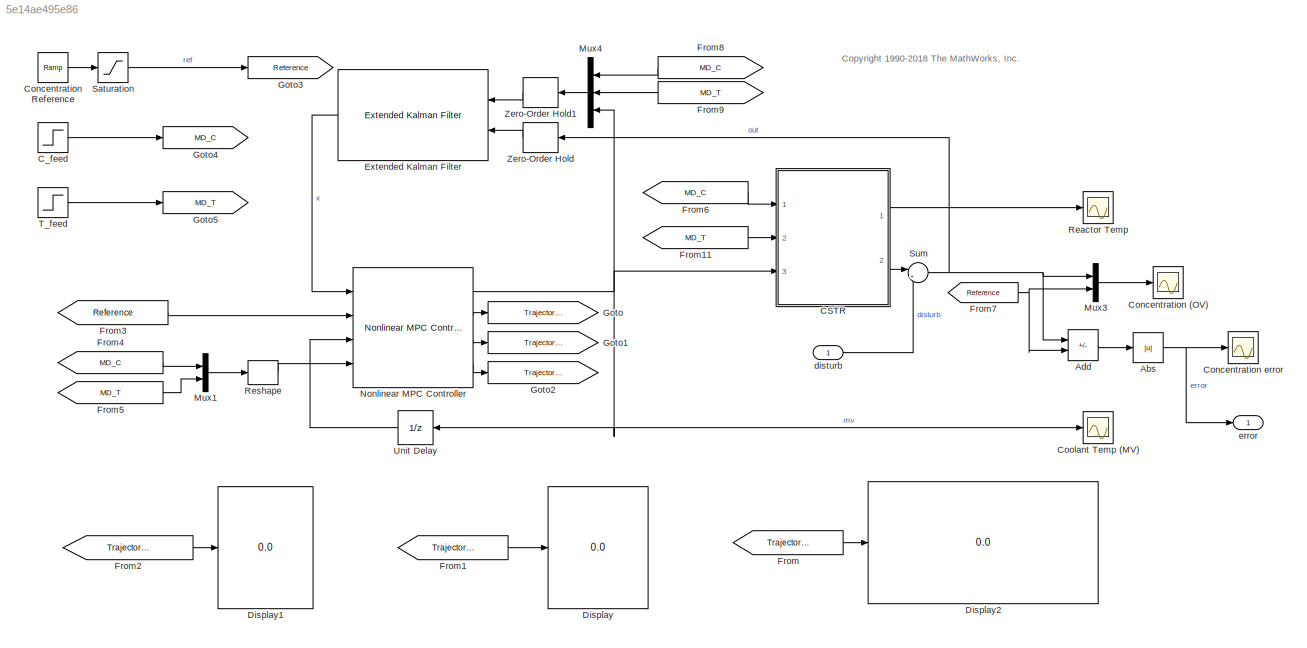
MODEL slx_5e14ae495e86
KIND model
CONFIG AbsTol = auto
CONFIG EnableMultiTasking = off
CONFIG FixedStep = Ts
CONFIG MaxStep = auto
CONFIG MinStep = auto
CONFIG RelTol = 1e-3
CONFIG SampleTimeConstraint = Unconstrained
CONFIG SolverName = FixedStepAuto
CONFIG StartTime = 0.0
CONFIG StopTime = tspan(end)
BLOCK [Abs] Abs
  SaturateOnIntegerOverflow = off
BLOCK [Sum] Add
  IconShape = rectangular
  Inputs = -+
  Ports = [2, 1]
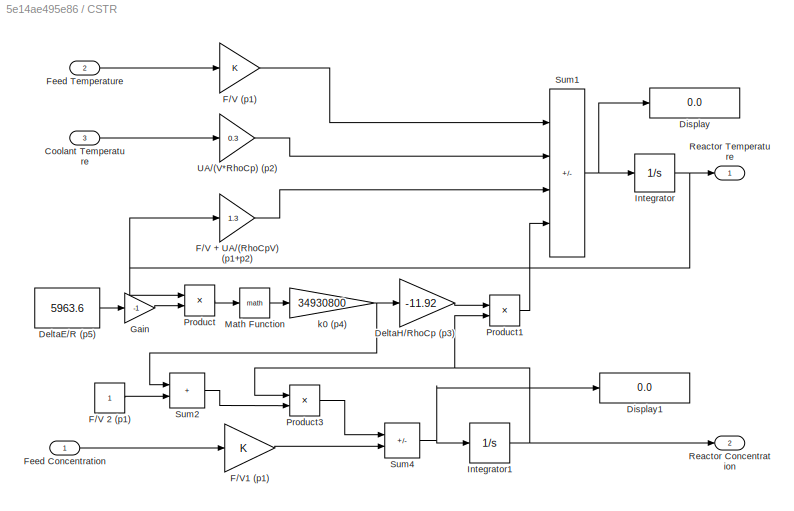
BLOCK [SubSystem] CSTR
  Ports = [3, 2]
  RequestExecContextInheritance = off
BLOCK [Inport] CSTR/Coolant Temperature
  Port = 3
BLOCK [Constant] CSTR/DeltaE//R (p5)
  Value = 5963.6
BLOCK [Gain] CSTR/DeltaH//RhoCp (p3)
  Gain = -11.92
  OutDataTypeStr = Inherit: Same as input
  ParamDataTypeStr = Inherit: Same as input
  SaturateOnIntegerOverflow = on
BLOCK [Display] CSTR/Display
  Decimation = 1
  Ports = [1]
BLOCK [Display] CSTR/Display1
  Decimation = 1
  Ports = [1]
BLOCK [Gain] CSTR/F//V (p1)
  OutDataTypeStr = Inherit: Same as input
  ParamDataTypeStr = Inherit: Same as input
  SaturateOnIntegerOverflow = on
BLOCK [Gain] CSTR/F//V + UA//(RhoCpV) (p1+p2)
  Gain = 1.3
  OutDataTypeStr = Inherit: Same as input
  ParamDataTypeStr = Inherit: Same as input
  SaturateOnIntegerOverflow = on
BLOCK [Constant] CSTR/F//V 2 (p1)
BLOCK [Gain] CSTR/F//V1 (p1)
  OutDataTypeStr = Inherit: Same as input
  ParamDataTypeStr = Inherit: Same as input
  SaturateOnIntegerOverflow = on
BLOCK [Inport] CSTR/Feed Concentration
BLOCK [Inport] CSTR/Feed Temperature
  Port = 2
BLOCK [Gain] CSTR/Gain
  Gain = -1
BLOCK [Integrator] CSTR/Integrator
  InitialCondition = x0(1)
  LimitOutput = on
  LowerSaturationLimit = 0
  Ports = [1, 1]
BLOCK [Integrator] CSTR/Integrator1
  InitialCondition = x0(2)
  LimitOutput = on
  LowerSaturationLimit = 0
  Ports = [1, 1]
BLOCK [Math] CSTR/Math Function
  Ports = [1, 1]
  SignedPower = on
BLOCK [Product] CSTR/Product
  InputSameDT = on
  Inputs = /*
  OutDataTypeStr = Inherit: Same as first input
  Ports = [2, 1]
  RndMeth = Zero
  SaturateOnIntegerOverflow = on
BLOCK [Product] CSTR/Product1
  InputSameDT = on
  OutDataTypeStr = Inherit: Same as first input
  Ports = [2, 1]
  RndMeth = Zero
  SaturateOnIntegerOverflow = on
BLOCK [Product] CSTR/Product3
  InputSameDT = on
  OutDataTypeStr = Inherit: Same as first input
  Ports = [2, 1]
  RndMeth = Zero
  SaturateOnIntegerOverflow = on
BLOCK [Outport] CSTR/Reactor Concentration
  Port = 2
  VectorParamsAs1DForOutWhenUnconnected = off
BLOCK [Outport] CSTR/Reactor Temperature
  VectorParamsAs1DForOutWhenUnconnected = off
BLOCK [Sum] CSTR/Sum1
  IconShape = rectangular
  InputSameDT = on
  Inputs = ++--
  OutDataTypeStr = Inherit: Same as first input
  Ports = [4, 1]
  SaturateOnIntegerOverflow = on
BLOCK [Sum] CSTR/Sum2
  IconShape = rectangular
  InputSameDT = on
  OutDataTypeStr = Inherit: Same as first input
  Ports = [2, 1]
  SaturateOnIntegerOverflow = on
BLOCK [Sum] CSTR/Sum4
  IconShape = rectangular
  InputSameDT = on
  Inputs = -+
  OutDataTypeStr = Inherit: Same as first input
  Ports = [2, 1]
  SaturateOnIntegerOverflow = on
BLOCK [Gain] CSTR/UA//(V*RhoCp) (p2)
  Gain = 0.3
  OutDataTypeStr = Inherit: Same as input
  ParamDataTypeStr = Inherit: Same as input
  SaturateOnIntegerOverflow = on
BLOCK [Gain] CSTR/k0 (p4)
  Gain = 34930800
  OutDataTypeStr = Inherit: Same as input
  ParamDataTypeStr = Inherit: Same as input
  SaturateOnIntegerOverflow = on
BLOCK [Step] C_feed
  After = 10.3
  Before = 10
  SampleTime = 0
  Time = 10
BLOCK [Scope] Concentration (OV)
  Floating = off
  NumInputPorts = 1
  Ports = [1]
  ScopeSpecificationString = Simulink.scopes.TimeScopeBlockCfg('CurrentConfiguration', extmgr.ConfigurationSet(extmgr.Configuration('Core','General UI',true),extmgr.Configuration('Core','Source UI',true),extmgr.Configuration('Sources','WiredSimulink',true),extmgr.Configuration('Visuals','Time Domain',true,'SerializedDisplays',{struct('MinYLimReal','1.15346','MaxYLimReal','9.39385','YLabelReal','','MinYLimMag','1.15346','MaxYL...<+1400ch>
BLOCK [Reference] Concentration Reference  REF=simulink/Sources/Ramp
  Ports = [0, 1]
  SourceBlock = simulink/Sources/Ramp
  SourceProductBaseCode = SL
  SourceType = Ramp
BLOCK [Scope] Concentration error
  Floating = off
  NumInputPorts = 1
  Ports = [1]
  ScopeSpecificationString = Simulink.scopes.TimeScopeBlockCfg('CurrentConfiguration', extmgr.ConfigurationSet(extmgr.Configuration('Core','General UI',true),extmgr.Configuration('Core','Source UI',true),extmgr.Configuration('Sources','WiredSimulink',true,'DataLoggingVariableName','ScopeData1'),extmgr.Configuration('Visuals','Time Domain',true,'SerializedDisplays',{struct('MinYLimReal','1.15346','MaxYLimReal','9.39385','YLabe...<+1439ch>
BLOCK [Scope] Coolant Temp (MV)
  Floating = off
  NumInputPorts = 1
  Ports = [1]
  ScopeSpecificationString = Simulink.scopes.TimeScopeBlockCfg('CurrentConfiguration', extmgr.ConfigurationSet(extmgr.Configuration('Core','General UI',true),extmgr.Configuration('Core','Source UI',true),extmgr.Configuration('Sources','WiredSimulink',true,'DataLoggingVariableName','ScopeData1'),extmgr.Configuration('Visuals','Time Domain',true,'SerializedDisplays',{struct('MinYLimReal','280.23919','MaxYLimReal','316.82175','Y...<+1446ch>
BLOCK [Display] Display
  Decimation = 1
  Ports = [1]
BLOCK [Display] Display1
  Decimation = 1
  Ports = [1]
BLOCK [Display] Display2
  Decimation = 1
  Ports = [1]
BLOCK [Reference] Extended Kalman Filter  REF=sharedTrackingLibrary/Extended Kalman Filter
  Ports = [2, 1]
  SourceBlock = sharedTrackingLibrary/Extended Kalman Filter
  SourceProductBaseCode = CT,DR,TF,ID,LP,NV,AR,RO,RR,UV,VE
  SourceType = Extended Kalman Filter
BLOCK [From] From
  GotoTag = Trajectory_State
BLOCK [From] From1
  GotoTag = Trajectory_MV
BLOCK [From] From11
  GotoTag = MD_T
BLOCK [From] From2
  GotoTag = Trajectory_Output
BLOCK [From] From3
  GotoTag = Reference
BLOCK [From] From4
  GotoTag = MD_C
BLOCK [From] From5
  GotoTag = MD_T
BLOCK [From] From6
  GotoTag = MD_C
BLOCK [From] From7
  GotoTag = Reference
BLOCK [From] From8
  GotoTag = MD_C
BLOCK [From] From9
  GotoTag = MD_T
BLOCK [Goto] Goto
  GotoTag = Trajectory_MV
BLOCK [Goto] Goto1
  GotoTag = Trajectory_State
BLOCK [Goto] Goto2
  GotoTag = Trajectory_Output
BLOCK [Goto] Goto3
  GotoTag = Reference
BLOCK [Goto] Goto4
  GotoTag = MD_C
BLOCK [Goto] Goto5
  GotoTag = MD_T
BLOCK [Mux] Mux1
  DisplayOption = bar
  Inputs = 2
  Ports = [2, 1]
BLOCK [Mux] Mux3
  DisplayOption = bar
  Inputs = 2
  Ports = [2, 1]
BLOCK [Mux] Mux4
  DisplayOption = bar
  Inputs = 3
  Ports = [3, 1]
BLOCK [Reference] Nonlinear MPC Controller  REF=mpclib/Nonlinear MPC Controller  (lib defined in mdl_ae329e0e0455)
  Ports = [4, 4]
  SCDEnableBlockLinearizationSpecification = on
  SourceBlock = mpclib/Nonlinear MPC Controller
  SourceProductBaseCode = MP
  SourceType = NonlinearMPC
BLOCK [Scope] Reactor Temp
  Floating = off
  NumInputPorts = 1
  Ports = [1]
  ScopeSpecificationString = Simulink.scopes.TimeScopeBlockCfg('CurrentConfiguration', extmgr.ConfigurationSet(extmgr.Configuration('Core','General UI',true),extmgr.Configuration('Core','Source UI',true),extmgr.Configuration('Sources','WiredSimulink',true,'DataLoggingVariableName','ScopeData1'),extmgr.Configuration('Visuals','Time Domain',true,'SerializedDisplays',{struct('MinYLimReal','301.39432','MaxYLimReal','399.70963','Y...<+1404ch>
BLOCK [Reshape] Reshape
  OutputDimensionality = Row vector (2-D)
  Ports = [1, 1]
BLOCK [Saturate] Saturation
  LowerLimit = 2
  UpperLimit = 10
BLOCK [Sum] Sum
  Inputs = |++
  Ports = [2, 1]
BLOCK [Step] T_feed
  After = 298.15
  Before = 298.15
  SampleTime = 301
  Time = 20
BLOCK [UnitDelay] Unit Delay
  HasFrameUpgradeWarning = on
  InitialCondition = u0(3)
  NameLocation = top
  SampleTime = -1
BLOCK [ZeroOrderHold] Zero-Order Hold
  SampleTime = Ts
BLOCK [ZeroOrderHold] Zero-Order Hold1
  SampleTime = Ts
BLOCK [Inport] disturb
BLOCK [Outport] error
ANNOTATION (root): <copyright redacted>
NET Abs:1 -> Concentration error:1, error:1
LINE Add:1 -> Abs:1
LINE CSTR/Coolant Temperature:1 -> CSTR/UA//(V*RhoCp) (p2):1
LINE CSTR/DeltaE//R (p5):1 -> CSTR/Gain:1
LINE CSTR/DeltaH//RhoCp (p3):1 -> CSTR/Product1:1
LINE CSTR/F//V (p1):1 -> CSTR/Sum1:1
LINE CSTR/F//V + UA//(RhoCpV) (p1+p2):1 -> CSTR/Sum1:3
LINE CSTR/F//V 2 (p1):1 -> CSTR/Sum2:2
LINE CSTR/F//V1 (p1):1 -> CSTR/Sum4:2
LINE CSTR/Feed Concentration:1 -> CSTR/F//V1 (p1):1
LINE CSTR/Feed Temperature:1 -> CSTR/F//V (p1):1
LINE CSTR/Gain:1 -> CSTR/Product:2
NET CSTR/Integrator1:1 -> CSTR/Product1:2, CSTR/Product3:1, CSTR/Reactor Concentration:1
NET CSTR/Integrator:1 -> CSTR/F//V + UA//(RhoCpV) (p1+p2):1, CSTR/Product:1, CSTR/Reactor Temperature:1
LINE CSTR/Math Function:1 -> CSTR/k0 (p4):1
LINE CSTR/Product1:1 -> CSTR/Sum1:4
LINE CSTR/Product3:1 -> CSTR/Sum4:1
LINE CSTR/Product:1 -> CSTR/Math Function:1
NET CSTR/Sum1:1 -> CSTR/Display:1, CSTR/Integrator:1
LINE CSTR/Sum2:1 -> CSTR/Product3:2
NET CSTR/Sum4:1 -> CSTR/Display1:1, CSTR/Integrator1:1
LINE CSTR/UA//(V*RhoCp) (p2):1 -> CSTR/Sum1:2
NET CSTR/k0 (p4):1 -> CSTR/DeltaH//RhoCp (p3):1, CSTR/Sum2:1
LINE CSTR:1 -> Reactor Temp:1
LINE CSTR:2 -> Sum:1
LINE C_feed:1 -> Goto4:1
LINE Concentration Reference:1 -> Saturation:1
LINE Extended Kalman Filter:1 -> Nonlinear MPC Controller:1
LINE From11:1 -> CSTR:2
LINE From1:1 -> Display:1
LINE From2:1 -> Display1:1
LINE From3:1 -> Nonlinear MPC Controller:2
LINE From4:1 -> Mux1:1
LINE From5:1 -> Mux1:2
LINE From6:1 -> CSTR:1
NET From7:1 -> Add:2, Mux3:2
LINE From8:1 -> Mux4:1
LINE From9:1 -> Mux4:2
LINE From:1 -> Display2:1
LINE Mux1:1 -> Reshape:1
LINE Mux3:1 -> Concentration (OV):1
LINE Mux4:1 -> Zero-Order Hold1:1
NET Nonlinear MPC Controller:1 -> CSTR:3, Coolant Temp (MV):1, Mux4:3, Unit Delay:1
LINE Nonlinear MPC Controller:2 -> Goto:1
LINE Nonlinear MPC Controller:3 -> Goto1:1
LINE Nonlinear MPC Controller:4 -> Goto2:1
LINE Reshape:1 -> Nonlinear MPC Controller:4
LINE Saturation:1 -> Goto3:1
NET Sum:1 -> Add:1, Mux3:1, Zero-Order Hold:1
LINE T_feed:1 -> Goto5:1
LINE Unit Delay:1 -> Nonlinear MPC Controller:3
LINE Zero-Order Hold1:1 -> Extended Kalman Filter:1
LINE Zero-Order Hold:1 -> Extended Kalman Filter:2
LINE disturb:1 -> Sum:2
note: NET lines group one-source signal fan-out (src -> all destinations, sorted); 1:1 wires keep LINE
